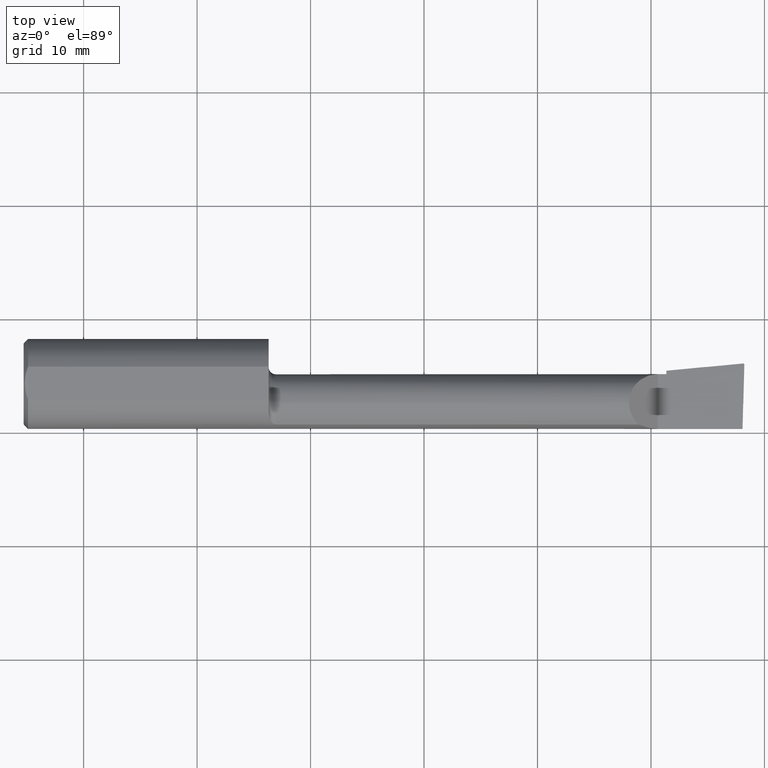
[diagram: clean part render]
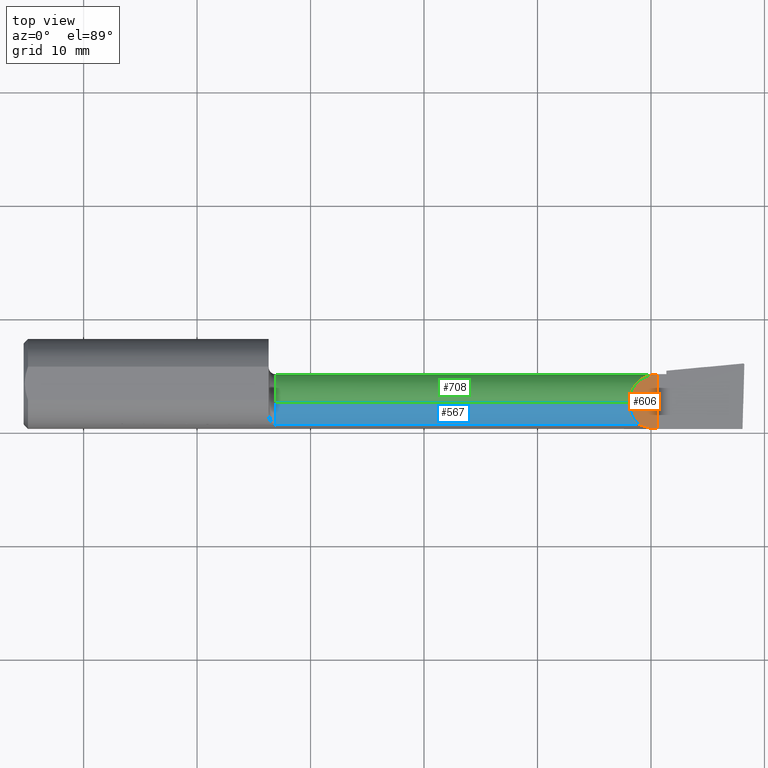
[diagram: same view with three faces highlighted in distinct colors, each labeled with its STEP entity id]
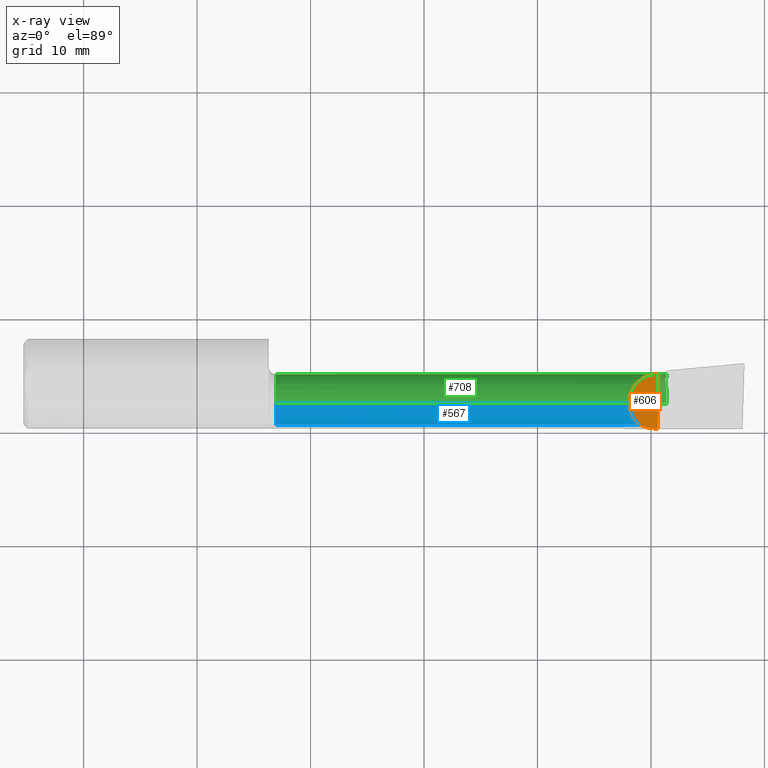
[diagram: x-ray of the same camera — body ghosted, the three highlighted faces saturated]
A machine part, top view with three faces highlighted in distinct colors.
The next image is the same camera in x-ray (body ghosted, the three faces saturated) — at least one of them is partly hidden behind the body in this view.
Their STEP definitions:

[orange] entity #606 — the highlighted planar face has unit normal (-0.7071, 0, -0.7071).
#15 = EDGE_CURVE ( 'NONE', #287, #368, #1147, .T. ) ;
#16 = CARTESIAN_POINT ( 'NONE',  ( 54.39328266747760665, 0.8595720119238138279, 1.489257332522372135 ) ) ;
#49 = AXIS2_PLACEMENT_3D ( 'NONE', #980, #1158, #311 ) ;
#92 = ORIENTED_EDGE ( 'NONE', *, *, #1006, .T. ) ;
#96 = CARTESIAN_POINT ( 'NONE',  ( 53.34253999999998541, -2.428222866824016446, 2.540000000000000036 ) ) ;
#108 = CARTESIAN_POINT ( 'NONE',  ( 55.88000000000000256, 0.8610587299996853572, 0.002539999999979711265 ) ) ;
#116 = CARTESIAN_POINT ( 'NONE',  ( 54.74300171423059425, -3.840973355998292149, 1.139538285769383430 ) ) ;
#124 = CARTESIAN_POINT ( 'NONE',  ( 55.88000000000000256, -3.964939186418879213, 0.002539999999978843903 ) ) ;
#187 = VERTEX_POINT ( 'NONE', #402 ) ;
#197 = PLANE ( 'NONE',  #49 ) ;
#198 = EDGE_CURVE ( 'NONE', #368, #187, #1070, .T. ) ;
#209 = CARTESIAN_POINT ( 'NONE',  ( 53.34253999999998541, -1.678939999999999433, 2.540000000000000036 ) ) ;
#260 = VECTOR ( 'NONE', #582, 1000.000000000000000 ) ;
#268 = CARTESIAN_POINT ( 'NONE',  ( 53.65407863508172426, -3.109668751225283412, 2.228461364918261189 ) ) ;
#287 = VERTEX_POINT ( 'NONE', #430 ) ;
#290 = EDGE_LOOP ( 'NONE', ( #309, #92, #624, #985 ) ) ;
#309 = ORIENTED_EDGE ( 'NONE', *, *, #15, .F. ) ;
#311 = DIRECTION ( 'NONE',  ( -0.7071067811865462405, 0.000000000000000000, 0.7071067811865489050 ) ) ;
#329 = CARTESIAN_POINT ( 'NONE',  ( 54.22074505735906769, -3.599887049924353821, 1.661794942640917094 ) ) ;
#368 = VERTEX_POINT ( 'NONE', #732 ) ;
#402 = CARTESIAN_POINT ( 'NONE',  ( 54.22074505735906769, -3.599887049924353821, 1.661794942640917094 ) ) ;
#430 = CARTESIAN_POINT ( 'NONE',  ( 55.88000000000000256, 0.8610587299996853572, 0.002539999999979711265 ) ) ;
#533 = EDGE_CURVE ( 'NONE', #534, #187, #978, .T. ) ;
#534 = VERTEX_POINT ( 'NONE', #833 ) ;
#574 = CARTESIAN_POINT ( 'NONE',  ( 54.22074505735906769, -3.599887049924353821, 1.661794942640917094 ) ) ;
#582 = DIRECTION ( 'NONE',  ( 0.000000000000000000, -1.000000000000000000, 0.000000000000000000 ) ) ;
#606 = ADVANCED_FACE ( 'NONE', ( #672 ), #197, .F. ) ;
#624 = ORIENTED_EDGE ( 'NONE', *, *, #533, .T. ) ;
#672 = FACE_OUTER_BOUND ( 'NONE', #290, .T. ) ;
#732 = CARTESIAN_POINT ( 'NONE',  ( 55.88000000000000256, -3.964939186418879213, 0.002539999999978843903 ) ) ;
#833 = CARTESIAN_POINT ( 'NONE',  ( 53.34253999999998541, -1.678939999999999433, 2.540000000000000036 ) ) ;
#895 =( BOUNDED_CURVE ( )  B_SPLINE_CURVE ( 3, ( #108, #16, #970, #209 ),
 .UNSPECIFIED., .F., .F. ) 
 B_SPLINE_CURVE_WITH_KNOTS ( ( 4, 4 ),
 ( 4.713388980551348695, 6.283185307179586232 ),
 .UNSPECIFIED. ) 
 CURVE ( )  GEOMETRIC_REPRESENTATION_ITEM ( )  RATIONAL_B_SPLINE_CURVE ( ( 1.000000000000000000, 0.8049734974886378902, 0.8049734974886378902, 1.000000000000000000 ) ) 
 REPRESENTATION_ITEM ( '' )  );
#966 = CARTESIAN_POINT ( 'NONE',  ( 55.30478309583587304, -3.964570693771735765, 0.5777569041641154035 ) ) ;
#970 = CARTESIAN_POINT ( 'NONE',  ( 53.34253999999997831, -0.1922219241183829586, 2.540000000000000036 ) ) ;
#978 =( BOUNDED_CURVE ( )  B_SPLINE_CURVE ( 3, ( #1049, #96, #268, #574 ),
 .UNSPECIFIED., .F., .F. ) 
 B_SPLINE_CURVE_WITH_KNOTS ( ( 4, 4 ),
 ( 0.000000000000000000, 0.8576058604657700313 ),
 .UNSPECIFIED. ) 
 CURVE ( )  GEOMETRIC_REPRESENTATION_ITEM ( )  RATIONAL_B_SPLINE_CURVE ( ( 1.000000000000000000, 0.9396427478180653381, 0.9396427478180653381, 1.000000000000000000 ) ) 
 REPRESENTATION_ITEM ( '' )  );
#980 = CARTESIAN_POINT ( 'NONE',  ( 52.19699999999999562, 2.540000000000000480, 3.685539999999999150 ) ) ;
#985 = ORIENTED_EDGE ( 'NONE', *, *, #198, .F. ) ;
#1006 = EDGE_CURVE ( 'NONE', #287, #534, #895, .T. ) ;
#1025 = CARTESIAN_POINT ( 'NONE',  ( 55.88000000000000256, 4.444999999999999396, 0.002539999999979711265 ) ) ;
#1049 = CARTESIAN_POINT ( 'NONE',  ( 53.34253999999998541, -1.678939999999999433, 2.540000000000000036 ) ) ;
#1070 =( BOUNDED_CURVE ( )  B_SPLINE_CURVE ( 3, ( #124, #966, #116, #329 ),
 .UNSPECIFIED., .F., .T. ) 
 B_SPLINE_CURVE_WITH_KNOTS ( ( 4, 4 ),
 ( 4.713029595418891660, 5.144867427157565842 ),
 .UNSPECIFIED. ) 
 CURVE ( )  GEOMETRIC_REPRESENTATION_ITEM ( )  RATIONAL_B_SPLINE_CURVE ( ( 1.000000000000000000, 0.9845199556095911575, 0.9845199556095911575, 1.000000000000000000 ) ) 
 REPRESENTATION_ITEM ( '' )  );
#1147 = LINE ( 'NONE', #1025, #260 ) ;
#1158 = DIRECTION ( 'NONE',  ( -0.7071067811865489050, 0.000000000000000000, -0.7071067811865462405 ) ) ;

[blue] entity #567 — the highlighted cylindrical surface (edge-blend (fillet) strip) has radius 2.54 mm, axis along (-1, -0, -0).
#4 = DIRECTION ( 'NONE',  ( 0.000000000000000000, 0.000000000000000000, -1.000000000000000000 ) ) ;
#56 = EDGE_CURVE ( 'NONE', #392, #84, #202, .T. ) ;
#67 = ORIENTED_EDGE ( 'NONE', *, *, #232, .T. ) ;
#84 = VERTEX_POINT ( 'NONE', #558 ) ;
#96 = CARTESIAN_POINT ( 'NONE',  ( 53.34253999999998541, -2.428222866824016446, 2.540000000000000036 ) ) ;
#151 = EDGE_LOOP ( 'NONE', ( #916, #1088, #528, #67 ) ) ;
#187 = VERTEX_POINT ( 'NONE', #402 ) ;
#202 = CIRCLE ( 'NONE', #902, 2.540000000000000036 ) ;
#232 = EDGE_CURVE ( 'NONE', #84, #187, #1085, .T. ) ;
#268 = CARTESIAN_POINT ( 'NONE',  ( 53.65407863508172426, -3.109668751225283412, 2.228461364918261189 ) ) ;
#300 = DIRECTION ( 'NONE',  ( 1.000000000000000000, 0.000000000000000000, 0.000000000000000000 ) ) ;
#365 = CYLINDRICAL_SURFACE ( 'NONE', #592, 2.540000000000000036 ) ;
#373 = DIRECTION ( 'NONE',  ( 1.000000000000000000, 0.000000000000000000, 0.000000000000000000 ) ) ;
#392 = VERTEX_POINT ( 'NONE', #711 ) ;
#402 = CARTESIAN_POINT ( 'NONE',  ( 54.22074505735906769, -3.599887049924353821, 1.661794942640917094 ) ) ;
#528 = ORIENTED_EDGE ( 'NONE', *, *, #56, .T. ) ;
#533 = EDGE_CURVE ( 'NONE', #534, #187, #978, .T. ) ;
#534 = VERTEX_POINT ( 'NONE', #833 ) ;
#558 = CARTESIAN_POINT ( 'NONE',  ( 22.22500000000000497, -3.599887049924355154, 1.661794942640912653 ) ) ;
#567 = ADVANCED_FACE ( 'NONE', ( #954 ), #365, .T. ) ;
#574 = CARTESIAN_POINT ( 'NONE',  ( 54.22074505735906769, -3.599887049924353821, 1.661794942640917094 ) ) ;
#592 = AXIS2_PLACEMENT_3D ( 'NONE', #845, #1229, #753 ) ;
#673 = CARTESIAN_POINT ( 'NONE',  ( 22.22500000000000497, -1.678939999999999433, 0.000000000000000000 ) ) ;
#711 = CARTESIAN_POINT ( 'NONE',  ( 22.22500000000000497, -1.678939999999999433, 2.540000000000000036 ) ) ;
#735 = VECTOR ( 'NONE', #300, 1000.000000000000000 ) ;
#753 = DIRECTION ( 'NONE',  ( 0.000000000000000000, 0.000000000000000000, 1.000000000000000000 ) ) ;
#778 = CARTESIAN_POINT ( 'NONE',  ( 39.11599999999999966, -3.599887049924355154, 1.661794942640912653 ) ) ;
#833 = CARTESIAN_POINT ( 'NONE',  ( 53.34253999999998541, -1.678939999999999433, 2.540000000000000036 ) ) ;
#845 = CARTESIAN_POINT ( 'NONE',  ( 21.59000000000000341, -1.678939999999999433, 0.000000000000000000 ) ) ;
#866 = CARTESIAN_POINT ( 'NONE',  ( 21.59000000000000341, -1.678939999999999433, 2.540000000000000036 ) ) ;
#902 = AXIS2_PLACEMENT_3D ( 'NONE', #673, #373, #4 ) ;
#916 = ORIENTED_EDGE ( 'NONE', *, *, #533, .F. ) ;
#954 = FACE_OUTER_BOUND ( 'NONE', #151, .T. ) ;
#958 = LINE ( 'NONE', #866, #1041 ) ;
#978 =( BOUNDED_CURVE ( )  B_SPLINE_CURVE ( 3, ( #1049, #96, #268, #574 ),
 .UNSPECIFIED., .F., .F. ) 
 B_SPLINE_CURVE_WITH_KNOTS ( ( 4, 4 ),
 ( 0.000000000000000000, 0.8576058604657700313 ),
 .UNSPECIFIED. ) 
 CURVE ( )  GEOMETRIC_REPRESENTATION_ITEM ( )  RATIONAL_B_SPLINE_CURVE ( ( 1.000000000000000000, 0.9396427478180653381, 0.9396427478180653381, 1.000000000000000000 ) ) 
 REPRESENTATION_ITEM ( '' )  );
#988 = EDGE_CURVE ( 'NONE', #534, #392, #958, .T. ) ;
#1041 = VECTOR ( 'NONE', #1139, 1000.000000000000000 ) ;
#1049 = CARTESIAN_POINT ( 'NONE',  ( 53.34253999999998541, -1.678939999999999433, 2.540000000000000036 ) ) ;
#1085 = LINE ( 'NONE', #778, #735 ) ;
#1088 = ORIENTED_EDGE ( 'NONE', *, *, #988, .T. ) ;
#1139 = DIRECTION ( 'NONE',  ( -1.000000000000000000, -0.000000000000000000, -0.000000000000000000 ) ) ;
#1229 = DIRECTION ( 'NONE',  ( -1.000000000000000000, -0.000000000000000000, -0.000000000000000000 ) ) ;

[green] entity #708 — the highlighted cylindrical surface (edge-blend (fillet) strip) has radius 2.54 mm, axis along (-1, -0, -0).
#16 = CARTESIAN_POINT ( 'NONE',  ( 54.39328266747760665, 0.8595720119238138279, 1.489257332522372135 ) ) ;
#18 = DIRECTION ( 'NONE',  ( 0.000000000000000000, 0.000000000000000000, 1.000000000000000000 ) ) ;
#46 = CARTESIAN_POINT ( 'NONE',  ( 56.64199999999999591, -1.678939999999999433, 0.000000000000000000 ) ) ;
#53 = DIRECTION ( 'NONE',  ( 0.000000000000000000, 0.000000000000000000, 1.000000000000000000 ) ) ;
#79 = EDGE_CURVE ( 'NONE', #1182, #222, #1120, .T. ) ;
#100 = ORIENTED_EDGE ( 'NONE', *, *, #547, .F. ) ;
#108 = CARTESIAN_POINT ( 'NONE',  ( 55.88000000000000256, 0.8610587299996853572, 0.002539999999979711265 ) ) ;
#129 = DIRECTION ( 'NONE',  ( -1.000000000000000000, -0.000000000000000000, -0.000000000000000000 ) ) ;
#140 = AXIS2_PLACEMENT_3D ( 'NONE', #46, #1185, #258 ) ;
#153 = AXIS2_PLACEMENT_3D ( 'NONE', #407, #777, #607 ) ;
#162 = VERTEX_POINT ( 'NONE', #312 ) ;
#166 = CIRCLE ( 'NONE', #153, 2.540000000000000036 ) ;
#167 = CARTESIAN_POINT ( 'NONE',  ( 56.52208028681336316, 0.5329470779028427918, -1.248661505215254097 ) ) ;
#172 = CARTESIAN_POINT ( 'NONE',  ( 21.59000000000000341, 0.8610600000000002696, -8.673617379884035472E-16 ) ) ;
#175 = CIRCLE ( 'NONE', #688, 2.540000000000000036 ) ;
#205 = CARTESIAN_POINT ( 'NONE',  ( 21.59000000000000341, -1.678939999999999211, -2.540000000000000036 ) ) ;
#209 = CARTESIAN_POINT ( 'NONE',  ( 53.34253999999998541, -1.678939999999999433, 2.540000000000000036 ) ) ;
#218 = DIRECTION ( 'NONE',  ( -1.000000000000000000, -0.000000000000000000, -0.000000000000000000 ) ) ;
#222 = VERTEX_POINT ( 'NONE', #513 ) ;
#250 = VERTEX_POINT ( 'NONE', #307 ) ;
#256 =( BOUNDED_CURVE ( )  B_SPLINE_CURVE ( 3, ( #1035, #1238, #1146, #948 ),
 .UNSPECIFIED., .F., .F. ) 
 B_SPLINE_CURVE_WITH_KNOTS ( ( 4, 4 ),
 ( 2.885266815324717626, 2.898469550304956233 ),
 .UNSPECIFIED. ) 
 CURVE ( )  GEOMETRIC_REPRESENTATION_ITEM ( )  RATIONAL_B_SPLINE_CURVE ( ( 1.000000000000000000, 0.9999854740351713511, 0.9999854740351713511, 1.000000000000000000 ) ) 
 REPRESENTATION_ITEM ( '' )  );
#258 = DIRECTION ( 'NONE',  ( 0.000000000000000000, 0.000000000000000000, 1.000000000000000000 ) ) ;
#259 = ORIENTED_EDGE ( 'NONE', *, *, #650, .T. ) ;
#284 = EDGE_LOOP ( 'NONE', ( #831, #259, #389, #820, #1197, #1066, #493, #1241, #1220, #100, #363 ) ) ;
#287 = VERTEX_POINT ( 'NONE', #430 ) ;
#307 = CARTESIAN_POINT ( 'NONE',  ( 56.64199999999999591, -1.678939999999999433, -2.540000000000000480 ) ) ;
#312 = CARTESIAN_POINT ( 'NONE',  ( 56.64199999999999591, -0.3352786765604253705, -2.155498607722263316 ) ) ;
#317 = CARTESIAN_POINT ( 'NONE',  ( 56.60650789487561951, -0.3438671563499280937, -2.160828660988213468 ) ) ;
#323 = EDGE_CURVE ( 'NONE', #222, #597, #677, .T. ) ;
#335 = CARTESIAN_POINT ( 'NONE',  ( 56.60650789487561951, -0.3438671563499280937, -2.160828660988213468 ) ) ;
#342 = CARTESIAN_POINT ( 'NONE',  ( 56.63026341365514327, -0.3381379660845336699, -2.157280987322183208 ) ) ;
#363 = ORIENTED_EDGE ( 'NONE', *, *, #907, .F. ) ;
#379 =( BOUNDED_CURVE ( )  B_SPLINE_CURVE ( 3, ( #996, #342, #913, #335 ),
 .UNSPECIFIED., .F., .T. ) 
 B_SPLINE_CURVE_WITH_KNOTS ( ( 4, 4 ),
 ( 3.384715756874630443, 3.388695282948744669 ),
 .UNSPECIFIED. ) 
 CURVE ( )  GEOMETRIC_REPRESENTATION_ITEM ( )  RATIONAL_B_SPLINE_CURVE ( ( 1.000000000000000000, 0.9999986802814542219, 0.9999986802814542219, 1.000000000000000000 ) ) 
 REPRESENTATION_ITEM ( '' )  );
#389 = ORIENTED_EDGE ( 'NONE', *, *, #722, .T. ) ;
#392 = VERTEX_POINT ( 'NONE', #711 ) ;
#407 = CARTESIAN_POINT ( 'NONE',  ( 22.22500000000000497, -1.678939999999999433, 0.000000000000000000 ) ) ;
#413 = EDGE_CURVE ( 'NONE', #287, #1182, #175, .T. ) ;
#426 = VECTOR ( 'NONE', #1036, 1000.000000000000000 ) ;
#430 = CARTESIAN_POINT ( 'NONE',  ( 55.88000000000000256, 0.8610587299996853572, 0.002539999999979711265 ) ) ;
#469 = CARTESIAN_POINT ( 'NONE',  ( 56.54978564970318189, 0.3211662971372761799, -1.623811351964777883 ) ) ;
#470 =( BOUNDED_CURVE ( )  B_SPLINE_CURVE ( 3, ( #1217, #840, #469, #1118 ),
 .UNSPECIFIED., .F., .T. ) 
 B_SPLINE_CURVE_WITH_KNOTS ( ( 4, 4 ),
 ( 4.479557257772967205, 4.982985725396996912 ),
 .UNSPECIFIED. ) 
 CURVE ( )  GEOMETRIC_REPRESENTATION_ITEM ( )  RATIONAL_B_SPLINE_CURVE ( ( 1.000000000000000000, 0.9789912600431243117, 0.9789912600431243117, 1.000000000000000000 ) ) 
 REPRESENTATION_ITEM ( '' )  );
#493 = ORIENTED_EDGE ( 'NONE', *, *, #79, .T. ) ;
#503 = CARTESIAN_POINT ( 'NONE',  ( 56.64199999999999591, -1.678939999999999433, 0.000000000000000000 ) ) ;
#513 = CARTESIAN_POINT ( 'NONE',  ( 56.64199999999999591, 0.8610600000000002696, -8.673617379884035472E-16 ) ) ;
#534 = VERTEX_POINT ( 'NONE', #833 ) ;
#547 = EDGE_CURVE ( 'NONE', #642, #843, #470, .T. ) ;
#580 = EDGE_CURVE ( 'NONE', #843, #597, #256, .T. ) ;
#593 = CYLINDRICAL_SURFACE ( 'NONE', #1090, 2.540000000000000036 ) ;
#597 = VERTEX_POINT ( 'NONE', #1245 ) ;
#607 = DIRECTION ( 'NONE',  ( 0.000000000000000000, 0.000000000000000000, -1.000000000000000000 ) ) ;
#642 = VERTEX_POINT ( 'NONE', #317 ) ;
#650 = EDGE_CURVE ( 'NONE', #250, #899, #704, .T. ) ;
#677 = CIRCLE ( 'NONE', #140, 2.540000000000000036 ) ;
#678 = CARTESIAN_POINT ( 'NONE',  ( 21.59000000000000341, -1.678939999999999433, 0.000000000000000000 ) ) ;
#688 = AXIS2_PLACEMENT_3D ( 'NONE', #824, #914, #53 ) ;
#698 = DIRECTION ( 'NONE',  ( 0.000000000000000000, 0.000000000000000000, 1.000000000000000000 ) ) ;
#704 = LINE ( 'NONE', #205, #830 ) ;
#708 = ADVANCED_FACE ( 'NONE', ( #1084 ), #593, .T. ) ;
#709 = EDGE_CURVE ( 'NONE', #162, #250, #995, .T. ) ;
#711 = CARTESIAN_POINT ( 'NONE',  ( 22.22500000000000497, -1.678939999999999433, 2.540000000000000036 ) ) ;
#722 = EDGE_CURVE ( 'NONE', #899, #392, #166, .T. ) ;
#777 = DIRECTION ( 'NONE',  ( 1.000000000000000000, 0.000000000000000000, 0.000000000000000000 ) ) ;
#794 = DIRECTION ( 'NONE',  ( -1.000000000000000000, -0.000000000000000000, -0.000000000000000000 ) ) ;
#820 = ORIENTED_EDGE ( 'NONE', *, *, #988, .F. ) ;
#824 = CARTESIAN_POINT ( 'NONE',  ( 55.88000000000000256, -1.678939999999999433, 0.000000000000000000 ) ) ;
#830 = VECTOR ( 'NONE', #129, 1000.000000000000000 ) ;
#831 = ORIENTED_EDGE ( 'NONE', *, *, #709, .T. ) ;
#833 = CARTESIAN_POINT ( 'NONE',  ( 53.34253999999998541, -1.678939999999999433, 2.540000000000000036 ) ) ;
#840 = CARTESIAN_POINT ( 'NONE',  ( 56.57853211268948712, 0.02262286437494908514, -1.934391978167296466 ) ) ;
#843 = VERTEX_POINT ( 'NONE', #167 ) ;
#866 = CARTESIAN_POINT ( 'NONE',  ( 21.59000000000000341, -1.678939999999999433, 2.540000000000000036 ) ) ;
#892 = CARTESIAN_POINT ( 'NONE',  ( 55.88000000000000256, 0.8610600000000002696, -8.673617379884035472E-16 ) ) ;
#895 =( BOUNDED_CURVE ( )  B_SPLINE_CURVE ( 3, ( #108, #16, #970, #209 ),
 .UNSPECIFIED., .F., .F. ) 
 B_SPLINE_CURVE_WITH_KNOTS ( ( 4, 4 ),
 ( 4.713388980551348695, 6.283185307179586232 ),
 .UNSPECIFIED. ) 
 CURVE ( )  GEOMETRIC_REPRESENTATION_ITEM ( )  RATIONAL_B_SPLINE_CURVE ( ( 1.000000000000000000, 0.8049734974886378902, 0.8049734974886378902, 1.000000000000000000 ) ) 
 REPRESENTATION_ITEM ( '' )  );
#899 = VERTEX_POINT ( 'NONE', #1130 ) ;
#907 = EDGE_CURVE ( 'NONE', #162, #642, #379, .T. ) ;
#913 = CARTESIAN_POINT ( 'NONE',  ( 56.61843269633380515, -0.3410007964591657559, -2.159057674088894263 ) ) ;
#914 = DIRECTION ( 'NONE',  ( -1.000000000000000000, -0.000000000000000000, -0.000000000000000000 ) ) ;
#948 = CARTESIAN_POINT ( 'NONE',  ( 56.64199999999999591, 0.5162690332466178811, -1.277754788820004483 ) ) ;
#958 = LINE ( 'NONE', #866, #1041 ) ;
#970 = CARTESIAN_POINT ( 'NONE',  ( 53.34253999999997831, -0.1922219241183829586, 2.540000000000000036 ) ) ;
#988 = EDGE_CURVE ( 'NONE', #534, #392, #958, .T. ) ;
#995 = CIRCLE ( 'NONE', #1009, 2.540000000000000036 ) ;
#996 = CARTESIAN_POINT ( 'NONE',  ( 56.64199999999999591, -0.3352786765604253705, -2.155498607722263316 ) ) ;
#1006 = EDGE_CURVE ( 'NONE', #287, #534, #895, .T. ) ;
#1009 = AXIS2_PLACEMENT_3D ( 'NONE', #503, #794, #698 ) ;
#1035 = CARTESIAN_POINT ( 'NONE',  ( 56.52208028681336316, 0.5329470779028427918, -1.248661505215254097 ) ) ;
#1036 = DIRECTION ( 'NONE',  ( 1.000000000000000000, 0.000000000000000000, 0.000000000000000000 ) ) ;
#1041 = VECTOR ( 'NONE', #1139, 1000.000000000000000 ) ;
#1066 = ORIENTED_EDGE ( 'NONE', *, *, #413, .T. ) ;
#1084 = FACE_OUTER_BOUND ( 'NONE', #284, .T. ) ;
#1090 = AXIS2_PLACEMENT_3D ( 'NONE', #678, #218, #18 ) ;
#1118 = CARTESIAN_POINT ( 'NONE',  ( 56.52208028681336316, 0.5329470779028427918, -1.248661505215254097 ) ) ;
#1120 = LINE ( 'NONE', #172, #426 ) ;
#1130 = CARTESIAN_POINT ( 'NONE',  ( 22.22500000000000497, -1.678939999999999211, -2.540000000000000036 ) ) ;
#1139 = DIRECTION ( 'NONE',  ( -1.000000000000000000, -0.000000000000000000, -0.000000000000000000 ) ) ;
#1146 = CARTESIAN_POINT ( 'NONE',  ( 56.60306167935599575, 0.5218923600378170269, -1.268093797621265173 ) ) ;
#1182 = VERTEX_POINT ( 'NONE', #892 ) ;
#1185 = DIRECTION ( 'NONE',  ( -1.000000000000000000, -0.000000000000000000, -0.000000000000000000 ) ) ;
#1197 = ORIENTED_EDGE ( 'NONE', *, *, #1006, .F. ) ;
#1217 = CARTESIAN_POINT ( 'NONE',  ( 56.60650789487561951, -0.3438671563499280937, -2.160828660988213468 ) ) ;
#1220 = ORIENTED_EDGE ( 'NONE', *, *, #580, .F. ) ;
#1238 = CARTESIAN_POINT ( 'NONE',  ( 56.56308786096884944, 0.5274517890126287911, -1.258395895548297228 ) ) ;
#1241 = ORIENTED_EDGE ( 'NONE', *, *, #323, .T. ) ;
#1245 = CARTESIAN_POINT ( 'NONE',  ( 56.64199999999999591, 0.5162690332466178811, -1.277754788820004483 ) ) ;